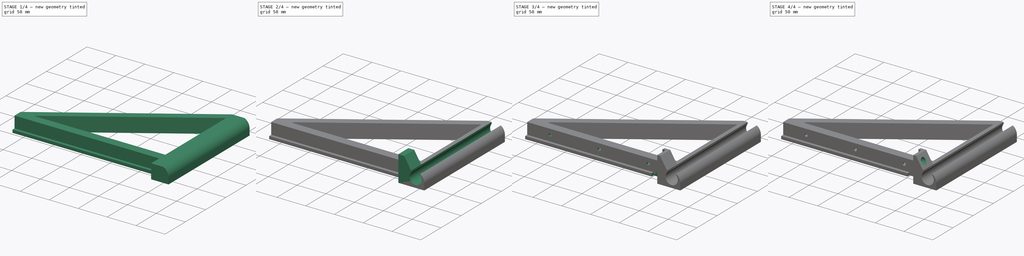
[diagram: build sequence overview — one tinted view per stage of 4, left to right]
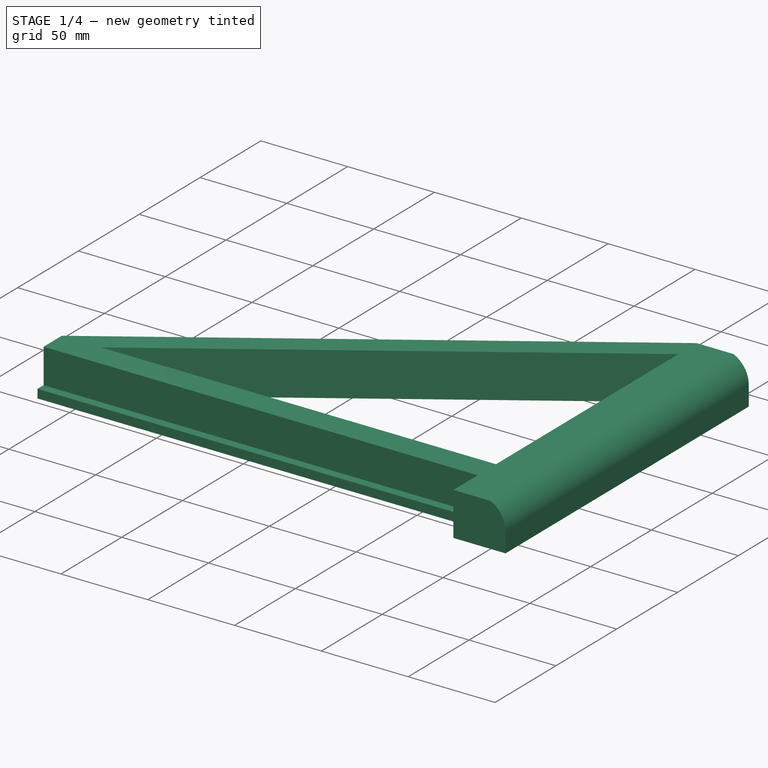
[diagram: stage 1 of 4 — iso view after this stage's code; geometry added in this stage tinted green]
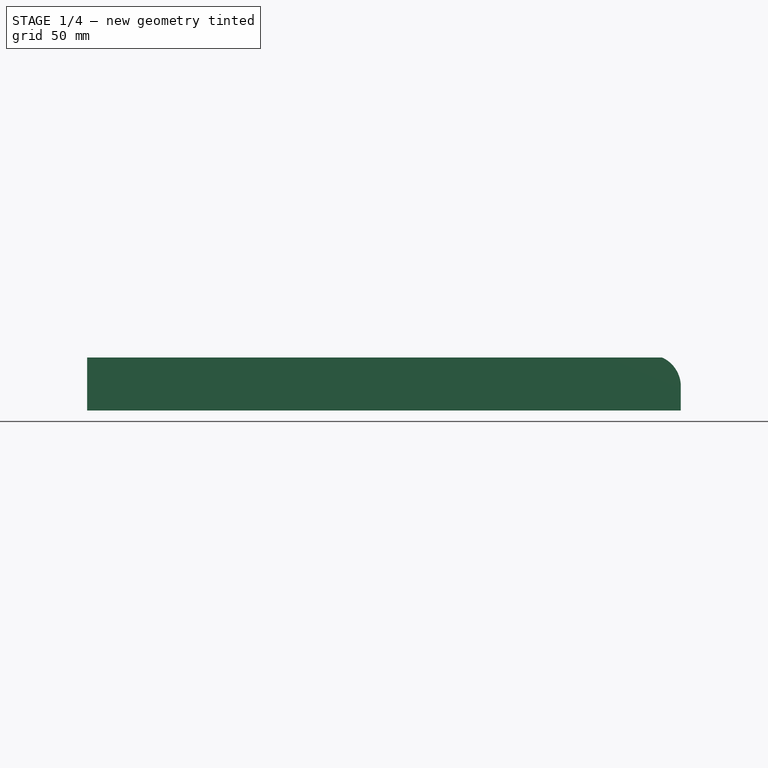
[diagram: stage 1 of 4 — front view after this stage's code; geometry added in this stage tinted green]
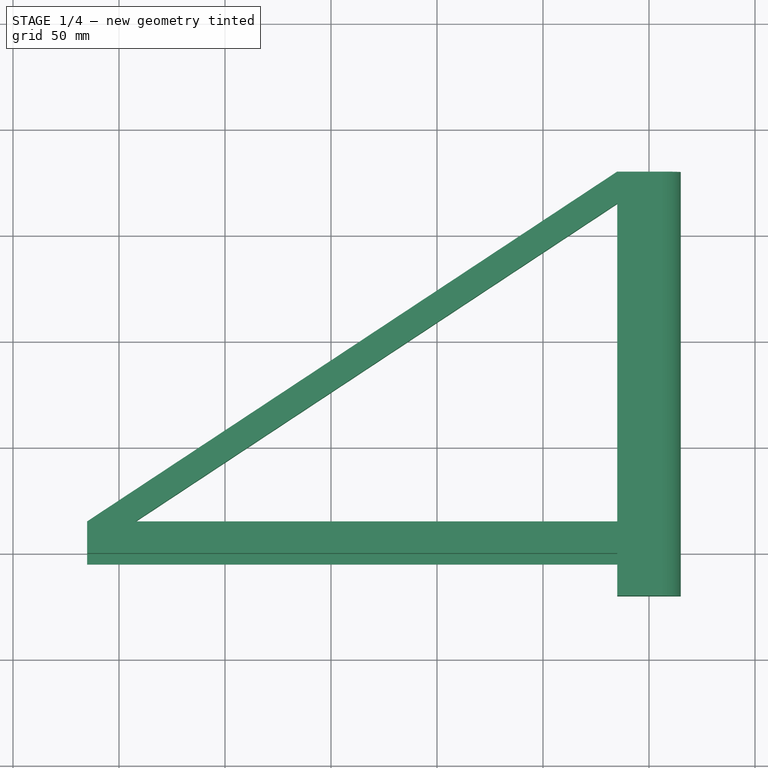
[diagram: stage 1 of 4 — top view after this stage's code; geometry added in this stage tinted green]
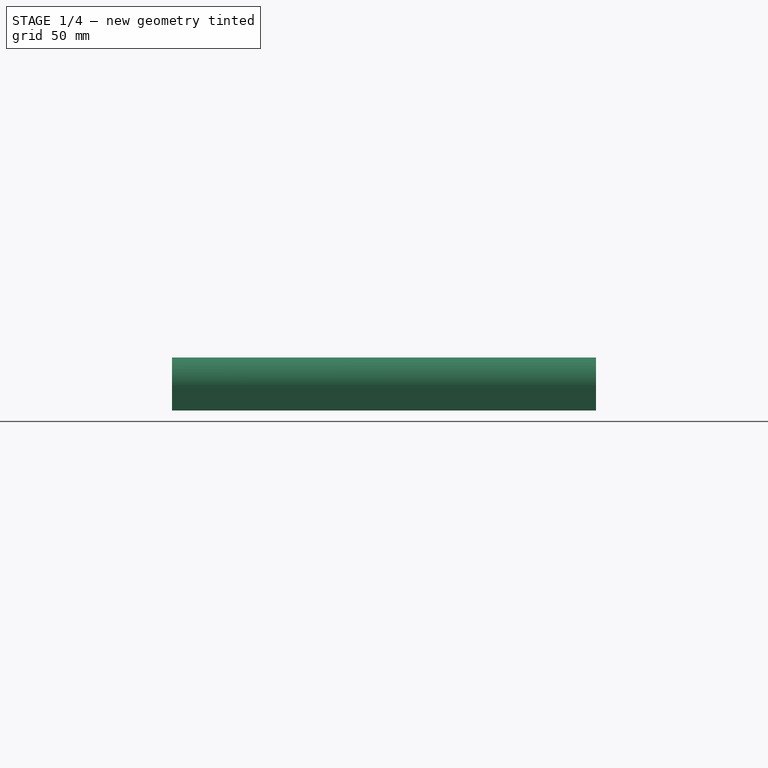
[diagram: stage 1 of 4 — right view after this stage's code; geometry added in this stage tinted green]
FCSTD DOCUMENT  (FreeCAD 0.19R20209 (Git))
Label: Z-Axel-Bearing_020
License: CreativeCommons Attribution
LicenseURL: http://creativecommons.org/licenses/by/4.0/
objects: Sketcher::SketchObject×14, PartDesign::Pocket×7, PartDesign::Pad×3, PartDesign::Plane×2, PartDesign::AdditivePipe×2, PartDesign::Body×1
note: 41 computed .brp shape members not serialized (recipe doc carries the construction recipe); baked Part::Feature solids carry a one-line shape summary decoded from their .brp

FEATURE [Sketcher::SketchObject] Sketch
  MapMode = 5
  Placement = pos=(0,0,0) rot=(1,0,0;1.5708rad)
  Support = -> [XZ_Plane]
  sketch-geometry (7):
    g0: LineSegment StartX=-15 StartY=10 StartZ=0 EndX=3.20156 EndY=10 EndZ=0
    g1: LineSegment StartX=15 StartY=-3.65795 StartZ=0 EndX=15 EndY=-15 EndZ=0
    g2: LineSegment StartX=15 StartY=-15 StartZ=0 EndX=-15 EndY=-15 EndZ=0
    g3: LineSegment StartX=-15 StartY=-15 StartZ=0 EndX=-15 EndY=10 EndZ=0
    g4: Circle [constr] CenterX=0 CenterY=0 CenterZ=0 NormalX=0 NormalY=0 NormalZ=1 AngleXU=0 Radius=10.5
    g5: LineSegment StartX=3.20156 StartY=10 StartZ=0 EndX=6.20156 EndY=10 EndZ=0
    g6: ArcOfCircle CenterX=0 CenterY=-3.65799 CenterZ=0 NormalX=0 NormalY=0 NormalZ=1 AngleXU=0 Radius=15 StartAngle=2.51217e-06 EndAngle=1.14457
  constraints (20):
    c: Coincident(g1,g2)
    c: Coincident(g2,g3)
    c: Coincident(g3,g0)
    c: Horizontal(g0)
    c: Vertical(g1)
    c: Vertical(g3)
    c: DistanceX(g2,g2) = 30
    c: Symmetric(g2,g1,g-2)
    c: DistanceY(g1,g-1) = 15
    c: Diameter(g4) = 21
    c: Coincident(g4,g-1)
    c: Horizontal(g5)
    c: Coincident(g6,g5)
    c: PointOnObject(g6,g-2)
    c: Tangent(g6,g1)
    c: Coincident(g1,g6)
    c: Coincident(g0,g5)
    c: DistanceY(g2,g0) = 25
    c: PointOnObject(g0,g4)
    c: DistanceX(g5,g5) = 3
FEATURE [PartDesign::Pad] Pad
  AllowMultiFace = false
  Length = 20
  Length2 = 180
  Placement = pos=(0,0,0) rot=(1,0,0;1.5708rad)
  Profile = -> Sketch
  Refine = true
  Type = 4
FEATURE [Sketcher::SketchObject] Sketch001
  MapMode = 5
  Support = -> [XY_Plane]
  expr: Constraints[1] = 280 - 15
  sketch-geometry (1):
    g0: LineSegment StartX=-265 StartY=0 StartZ=0 EndX=0 EndY=0 EndZ=0
  constraints (3):
    c: Horizontal(g0)
    c: DistanceX(g0,g0) = 265
    c: Coincident(g0,g-1)
FEATURE [PartDesign::Plane] DatumPlane
  AttachmentOffset = pos=(0,0,-265) rot=(0,0,1;0rad)
  Length = 226.237
  MapMode = 5
  Placement = pos=(-265,5.88e-14,-5.88e-14) rot=(0.57735,0.57735,0.57735;2.0944rad)
  ResizeMode = 0
  Support = -> [YZ_Plane]
  Width = 76.2368
FEATURE [Sketcher::SketchObject] Sketch002
  ExternalGeometry = -> [Sketch001,Pad]
  MapMode = 5
  Placement = pos=(-265,5.88e-14,-5.88e-14) rot=(0.57735,0.57735,0.57735;2.0944rad)
  Support = -> [DatumPlane]
  sketch-geometry (8):
    g0: LineSegment StartX=0 StartY=-10 StartZ=0 EndX=0 EndY=10 EndZ=0
    g1: LineSegment StartX=0 StartY=10 StartZ=0 EndX=15 EndY=10 EndZ=0
    g2: LineSegment StartX=15 StartY=-15 StartZ=0 EndX=-5 EndY=-15 EndZ=0
    g3: LineSegment StartX=-5 StartY=-15 StartZ=0 EndX=-5 EndY=-10 EndZ=0
    g4: LineSegment StartX=-5 StartY=-10 StartZ=0 EndX=0 EndY=-10 EndZ=0
    g5: LineSegment StartX=15 StartY=10 StartZ=0 EndX=5 EndY=3.2e-14 EndZ=0
    g6: LineSegment StartX=5 StartY=3.2e-14 StartZ=0 EndX=5 EndY=-5 EndZ=0
    g7: LineSegment StartX=5 StartY=-5 StartZ=0 EndX=15 EndY=-15 EndZ=0
  constraints (24):
    c: Vertical(g0)
    c: Coincident(g0,g1)
    c: Horizontal(g1)
    c: Horizontal(g2)
    c: Coincident(g2,g3)
    c: Vertical(g3)
    c: Coincident(g3,g4)
    c: Horizontal(g4)
    c: Equal(g3,g4)
    c: DistanceY(g3,g3) = 5
    c: Vertical(g4,g-1)
    c: PointOnObject(g2,g-4)
    c: Coincident(g0,g4)
    c: DistanceY(g0,g0) = 20
    c: Vertical(g2,g1)
    c: Coincident(g5,g6)
    c: Vertical(g6)
    c: Coincident(g6,g7)
    c: Coincident(g7,g2)
    c: Coincident(g5,g1)
    c: Angle(g1,g5) = 0.785398
    c: Angle(g7,g2) = 0.785398
    c: DistanceX(g0,g5) = 5
    c: DistanceY(g6,g6) = 5
FEATURE [PartDesign::AdditivePipe] AdditivePipe
  AllowMultiFace = false
  AuxilleryCurvelinear = true
  AuxillerySpineTangent = false
  BaseFeature = -> Pad
  Binormal = (0,0,0)
  Mode = 2
  Placement = pos=(0,0,0) rot=(1,0,0;1.5708rad)
  Profile = -> Sketch002
  Refine = true
  Spine = -> Sketch001
  SpineTangent = false
  Transformation = 0
  Transition = 0
FEATURE [Sketcher::SketchObject] Sketch003
  ExternalGeometry = -> [AdditivePipe]
  MapMode = 5
  Placement = pos=(-265,5.88e-14,-5.88e-14) rot=(0.57735,0.57735,0.57735;2.0944rad)
  Support = -> [DatumPlane]
  sketch-geometry (6):
    g0: LineSegment StartX=0 StartY=10 StartZ=0 EndX=0 EndY=-15 EndZ=0
    g1: LineSegment StartX=0 StartY=-15 StartZ=0 EndX=15 EndY=-15 EndZ=0
    g2: LineSegment StartX=15 StartY=-15 StartZ=0 EndX=5 EndY=-5 EndZ=0
    g3: LineSegment StartX=5 StartY=-5 StartZ=0 EndX=5 EndY=1.6e-14 EndZ=0
    g4: LineSegment StartX=5 StartY=1.6e-14 StartZ=0 EndX=15 EndY=10 EndZ=0
    g5: LineSegment StartX=15 StartY=10 StartZ=0 EndX=0 EndY=10 EndZ=0
  constraints (14):
    c: Vertical(g0)
    c: Coincident(g0,g1)
    c: Horizontal(g1)
    c: Coincident(g1,g2)
    c: Coincident(g2,g3)
    c: Coincident(g3,g4)
    c: Coincident(g4,g5)
    c: Horizontal(g5)
    c: Coincident(g5,g0)
    c: Vertical(g0,g-1)
    c: Coincident(g4,g-3)
    c: Coincident(g3,g-3)
    c: Coincident(g2,g-4)
    c: Coincident(g1,g-4)
FEATURE [Sketcher::SketchObject] Sketch004
  ExternalGeometry = -> [AdditivePipe]
  MapMode = 5
  Support = -> [XY_Plane]
  sketch-geometry (2):
    g0: LineSegment StartX=-265 StartY=6.11e-14 StartZ=0 EndX=-15 EndY=165 EndZ=0
    g1: LineSegment [constr] StartX=-265 StartY=15 StartZ=0 EndX=-15 EndY=180 EndZ=0
  constraints (5):
    c: Coincident(g0,g-3)
    c: PointOnObject(g0,g-4)
    c: Coincident(g1,g-4)
    c: Coincident(g1,g-5)
    c: Parallel(g1,g0)
FEATURE [PartDesign::AdditivePipe] AdditivePipe001
  AllowMultiFace = false
  AuxilleryCurvelinear = true
  AuxillerySpineTangent = false
  BaseFeature = -> AdditivePipe
  Binormal = (0,0,0)
  Mode = 2
  Placement = pos=(0,0,0) rot=(1,0,0;1.5708rad)
  Profile = -> Sketch003
  Refine = true
  Spine = -> Sketch004
  SpineTangent = false
  Transformation = 0
  Transition = 0
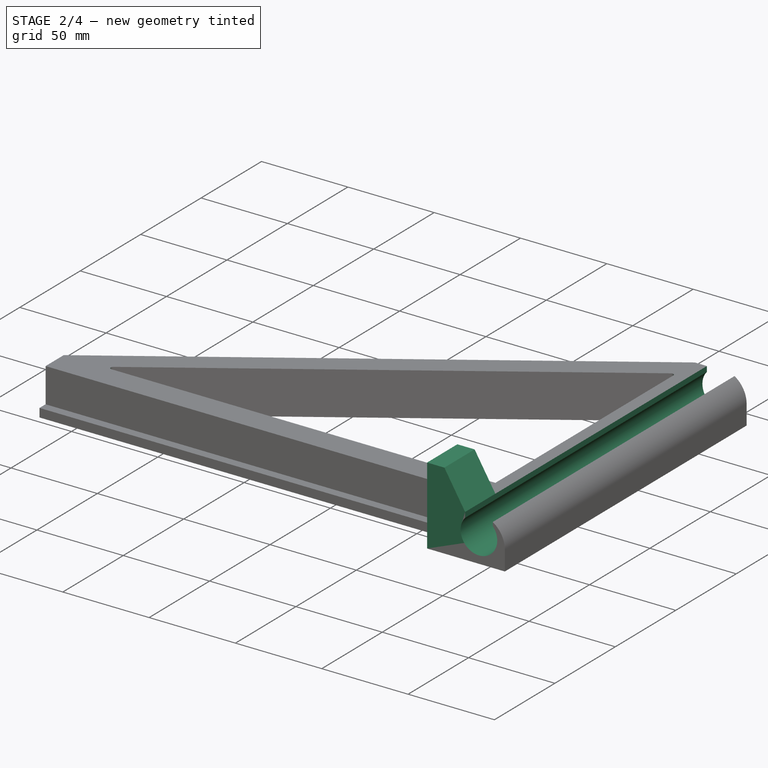
[diagram: stage 2 of 4 — iso view after this stage's code; geometry added in this stage tinted green]
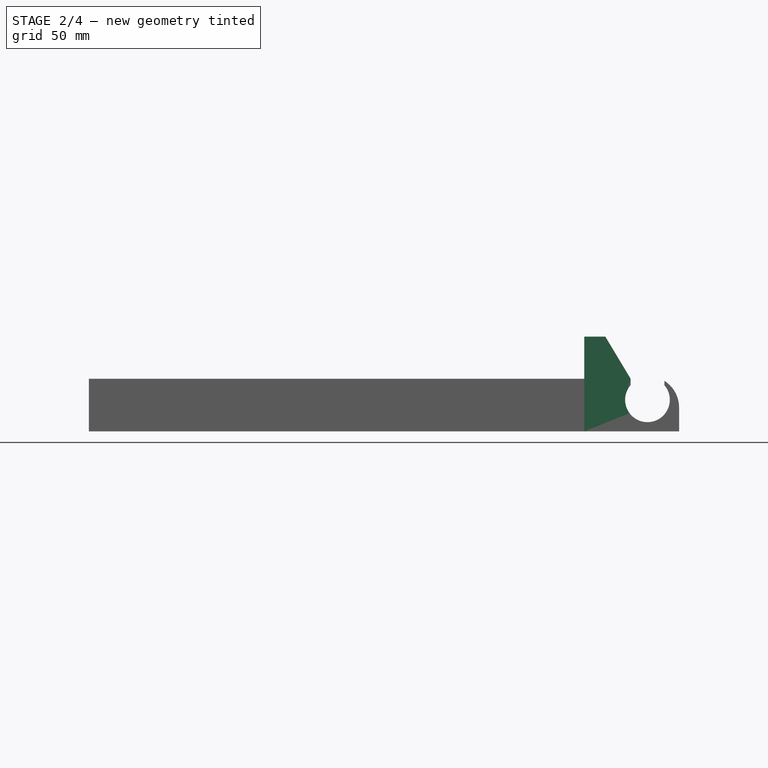
[diagram: stage 2 of 4 — front view after this stage's code; geometry added in this stage tinted green]
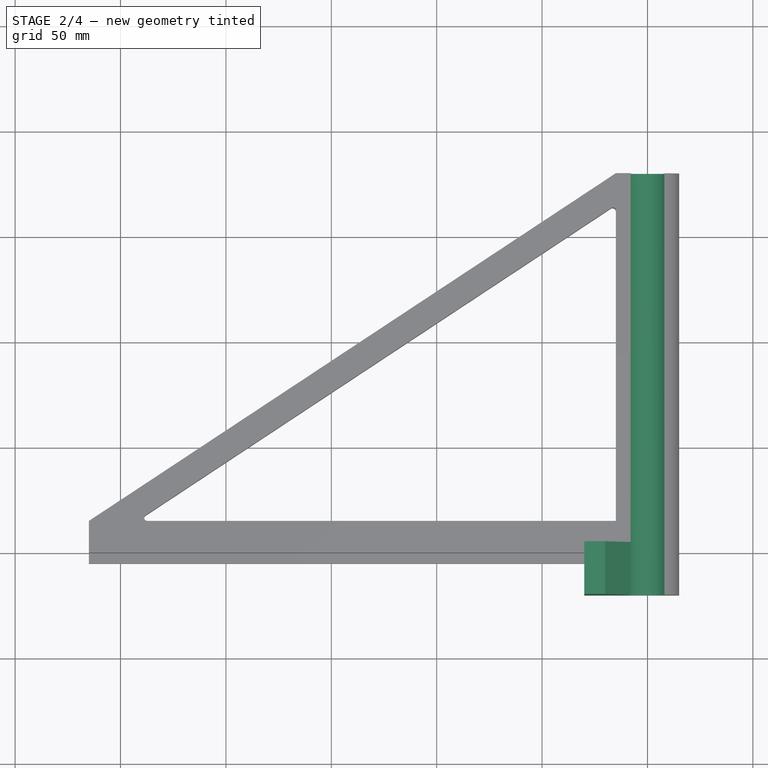
[diagram: stage 2 of 4 — top view after this stage's code; geometry added in this stage tinted green]
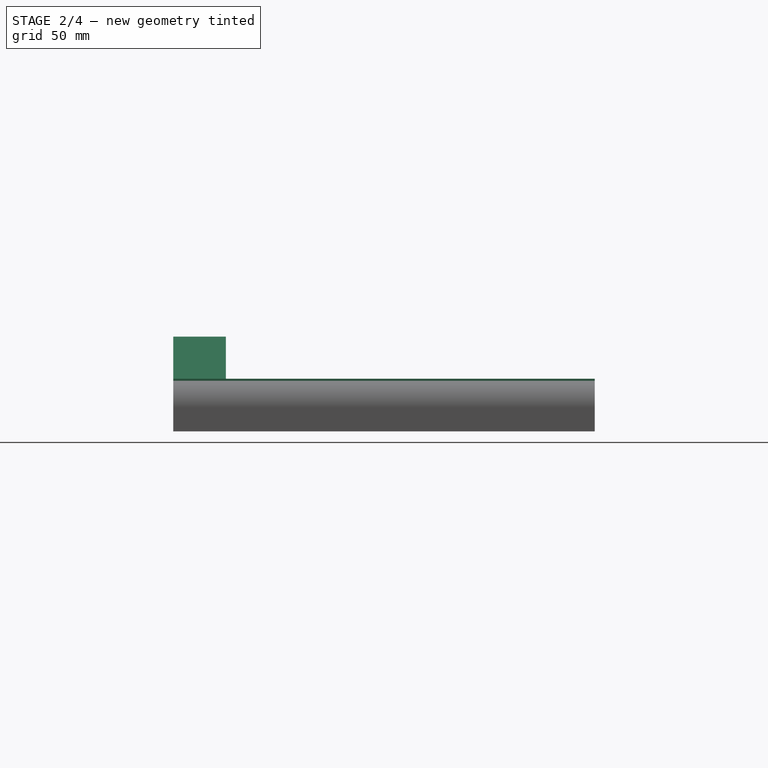
[diagram: stage 2 of 4 — right view after this stage's code; geometry added in this stage tinted green]
FEATURE [Sketcher::SketchObject] Sketch005
  ExternalGeometry = -> [AdditivePipe001]
  MapMode = 5
  Placement = pos=(-1.4e-15,4.1e-15,10) rot=(0,0,1;3.14159rad)
  Support = -> [AdditivePipe001]
  sketch-geometry (11):
    g0: ArcOfCircle CenterX=237.277 CenterY=-16.5 CenterZ=0 NormalX=0 NormalY=0 NormalZ=1 AngleXU=0 Radius=1.5 StartAngle=5.29575 EndAngle=7.85398
    g1: LineSegment StartX=237.277 StartY=-15 StartZ=0 EndX=237.277 EndY=-5 EndZ=0
    g2: LineSegment StartX=237.277 StartY=-5 StartZ=0 EndX=257.424 EndY=-5 EndZ=0
    g3: LineSegment StartX=257.424 StartY=-5 StartZ=0 EndX=257.424 EndY=-10 EndZ=0
    g4: LineSegment StartX=257.424 StartY=-10 StartZ=0 EndX=241.155 EndY=-20.7377 EndZ=0
    g5: LineSegment StartX=241.155 StartY=-20.7377 StartZ=0 EndX=238.103 EndY=-17.7519 EndZ=0
    g6: ArcOfCircle CenterX=16.5 CenterY=-162.213 CenterZ=0 NormalX=0 NormalY=0 NormalZ=1 AngleXU=0 Radius=1.5 StartAngle=3.14159 EndAngle=5.29575
    g7: LineSegment StartX=15 StartY=-162.213 StartZ=0 EndX=12.5275 EndY=-162.213 EndZ=0
    g8: LineSegment StartX=12.5275 StartY=-162.213 StartZ=0 EndX=12.5275 EndY=-171.632 EndZ=0
    g9: LineSegment StartX=17.3263 StartY=-163.465 StartZ=0 EndX=19.8157 EndY=-166.822 EndZ=0
    g10: LineSegment StartX=19.8157 StartY=-166.822 StartZ=0 EndX=12.5275 EndY=-171.632 EndZ=0
  constraints (30):
    c: PointOnObject(g0,g-5)
    c: PointOnObject(g0,g-4)
    c: Tangent(g0,g-4)
    c: Tangent(g-5,g0)
    c: Diameter(g0) = 3
    c: Vertical(g1)
    c: Coincident(g1,g2)
    c: Coincident(g2,g3)
    c: Coincident(g3,g4)
    c: Coincident(g4,g5)
    c: Coincident(g5,g0)
    c: Coincident(g1,g0)
    c: Horizontal(g2)
    c: Vertical(g3)
    c: PointOnObject(g6,g-4)
    c: Tangent(g6,g-3) = 1.5708
    c: Tangent(g-4,g6)
    c: Diameter(g6) = 3
    c: Horizontal(g7)
    c: Coincident(g7,g8)
    c: Vertical(g8)
    c: Coincident(g7,g6)
    c: PointOnObject(g4,g-6)
    c: Coincident(g2,g-7)
    c: Parallel(g4,g-6)
    c: Coincident(g9,g10)
    c: Coincident(g6,g9)
    c: Parallel(g-6,g10)
    c: PointOnObject(g9,g-6)
    c: Coincident(g8,g10)
FEATURE [PartDesign::Pad] Pad001
  AllowMultiFace = false
  BaseFeature = -> AdditivePipe001
  Length = 25
  Length2 = 100
  Placement = pos=(0,0,0) rot=(1,0,0;1.5708rad)
  Profile = -> Sketch005
  Refine = true
  Reversed = true
  Type = 0
FEATURE [Sketcher::SketchObject] Sketch006
  MapMode = 5
  Placement = pos=(0,0,0) rot=(1,0,0;1.5708rad)
  Support = -> [XZ_Plane]
  sketch-geometry (4):
    g0: ArcOfCircle CenterX=0 CenterY=0 CenterZ=0 NormalX=0 NormalY=0 NormalZ=1 AngleXU=0 Radius=10.6 StartAngle=2.42602 EndAngle=6.99876
    g1: LineSegment StartX=-8 StartY=22.9541 StartZ=0 EndX=8 EndY=22.9541 EndZ=0
    g2: LineSegment StartX=8 StartY=22.9541 StartZ=0 EndX=8 EndY=6.95414 EndZ=0
    g3: LineSegment StartX=-8 StartY=6.95414 StartZ=0 EndX=-8 EndY=22.9541 EndZ=0
  constraints (12):
    c: Coincident(g0,g-1)
    c: Diameter(g0) = 21.2
    c: Coincident(g1,g2)
    c: Coincident(g3,g1)
    c: Vertical(g2)
    c: Vertical(g3)
    c: Symmetric(g1,g1,g-2)
    c: DistanceX(g1,g1) = 16
    c: PointOnObject(g2,g0)
    c: Equal(g2,g1)
    c: Coincident(g3,g0)
    c: Horizontal(g0,g0)
FEATURE [PartDesign::Pocket] Pocket
  AllowMultiFace = false
  BaseFeature = -> Pad001
  Length = 5
  Length2 = 100
  Midplane = true
  Placement = pos=(0,0,0) rot=(1,0,0;1.5708rad)
  Profile = -> Sketch006
  Refine = true
  Type = 1
FEATURE [Sketcher::SketchObject] Sketch007
  ExternalGeometry = -> [Pocket]
  MapMode = 5
  Placement = pos=(0,0,0) rot=(1,0,0;1.5708rad)
  Support = -> [XZ_Plane]
  sketch-geometry (7):
    g0: LineSegment StartX=-8 StartY=10 StartZ=0 EndX=-20 EndY=30 EndZ=0
    g1: LineSegment StartX=-20 StartY=30 StartZ=0 EndX=-30 EndY=30 EndZ=0
    g2: LineSegment StartX=-30 StartY=30 StartZ=0 EndX=-30 EndY=-15 EndZ=0
    g3: LineSegment StartX=-30 StartY=-15 StartZ=0 EndX=-10.6 EndY=-15 EndZ=0
    g4: LineSegment StartX=-10.6 StartY=-15 StartZ=0 EndX=-10.6 EndY=6.95414 EndZ=0
    g5: LineSegment StartX=-10.6 StartY=6.95414 StartZ=0 EndX=-8 EndY=6.95414 EndZ=0
    g6: LineSegment StartX=-8 StartY=6.95414 StartZ=0 EndX=-8 EndY=10 EndZ=0
  constraints (19):
    c: Coincident(g0,g1)
    c: Horizontal(g1)
    c: Coincident(g1,g2)
    c: Vertical(g2)
    c: Coincident(g2,g3)
    c: Horizontal(g3)
    c: Coincident(g3,g4)
    c: Vertical(g4)
    c: Coincident(g4,g5)
    c: Horizontal(g5)
    c: Coincident(g5,g6)
    c: Coincident(g5,g-3)
    c: Tangent(g4,g-5)
    c: Coincident(g6,g0)
    c: Coincident(g0,g-3)
    c: PointOnObject(g2,g-4)
    c: DistanceX(g2,g-1) = 30
    c: DistanceY(g2,g1) = 45
    c: DistanceX(g1,g1) = 10
FEATURE [PartDesign::Pad] Pad002
  AllowMultiFace = false
  BaseFeature = -> Pocket
  Length = 20
  Length2 = 5
  Placement = pos=(0,0,0) rot=(1,0,0;1.5708rad)
  Profile = -> Sketch007
  Refine = true
  Type = 4
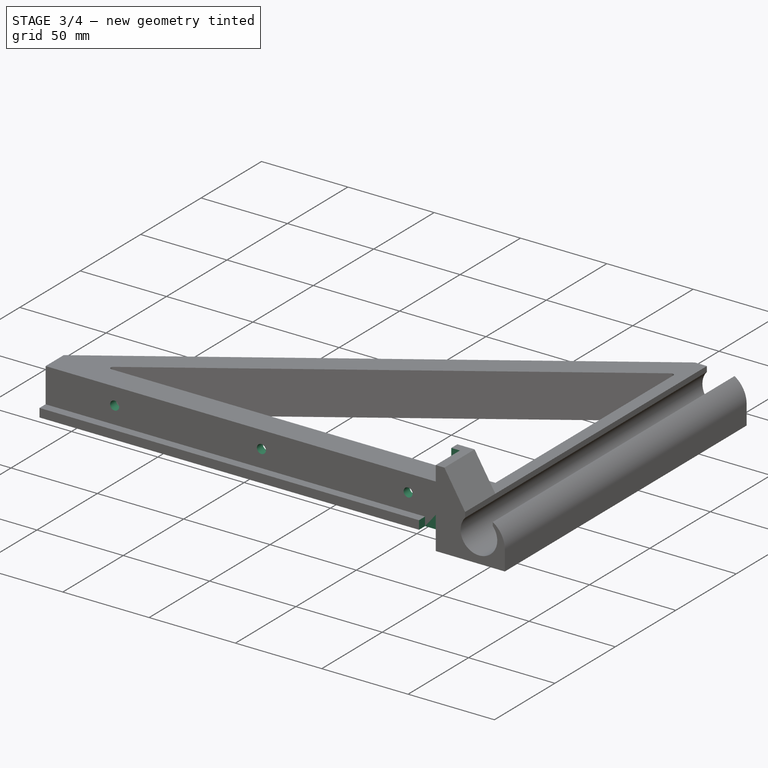
[diagram: stage 3 of 4 — iso view after this stage's code; geometry added in this stage tinted green]
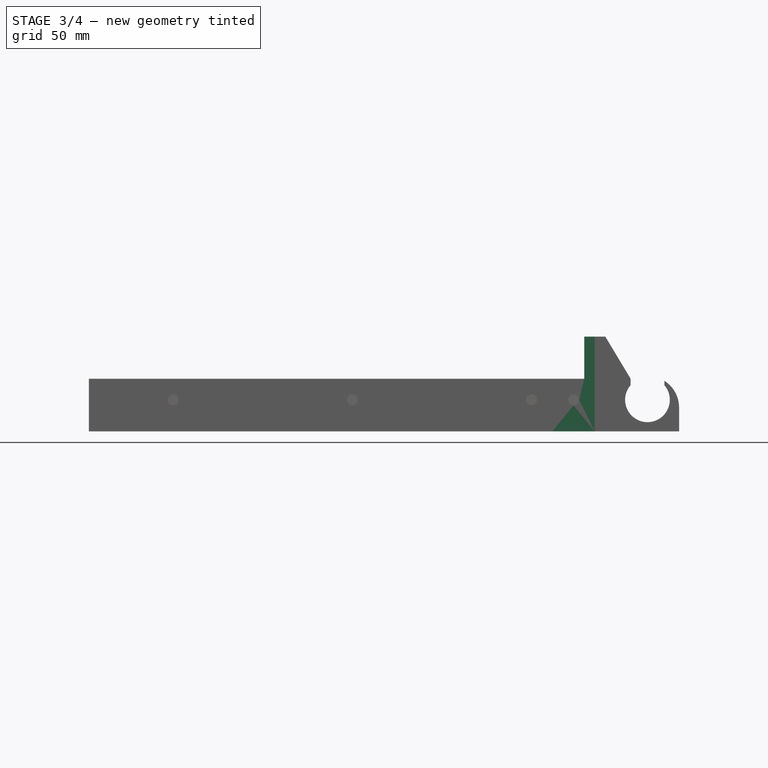
[diagram: stage 3 of 4 — front view after this stage's code; geometry added in this stage tinted green]
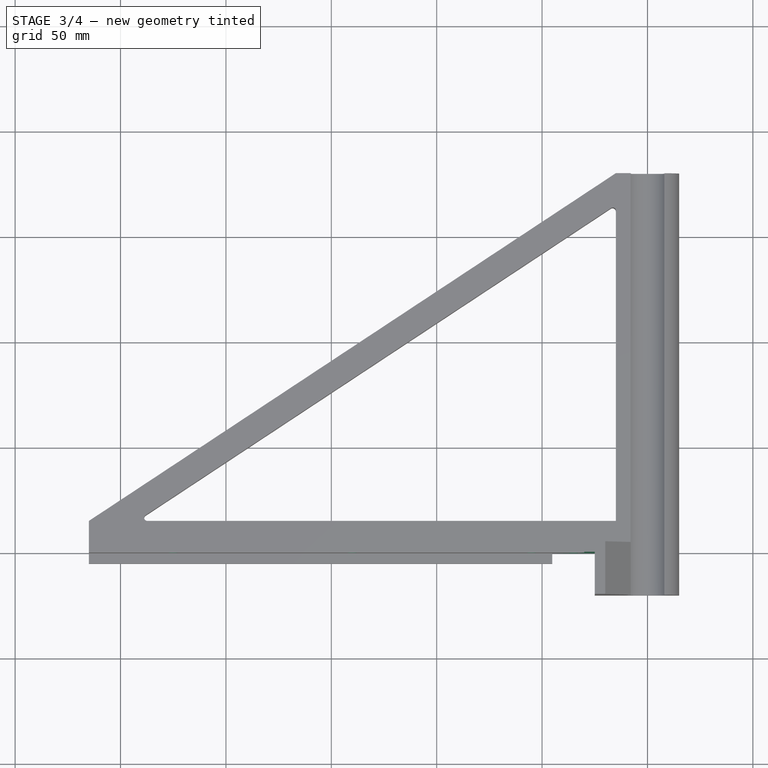
[diagram: stage 3 of 4 — top view after this stage's code; geometry added in this stage tinted green]
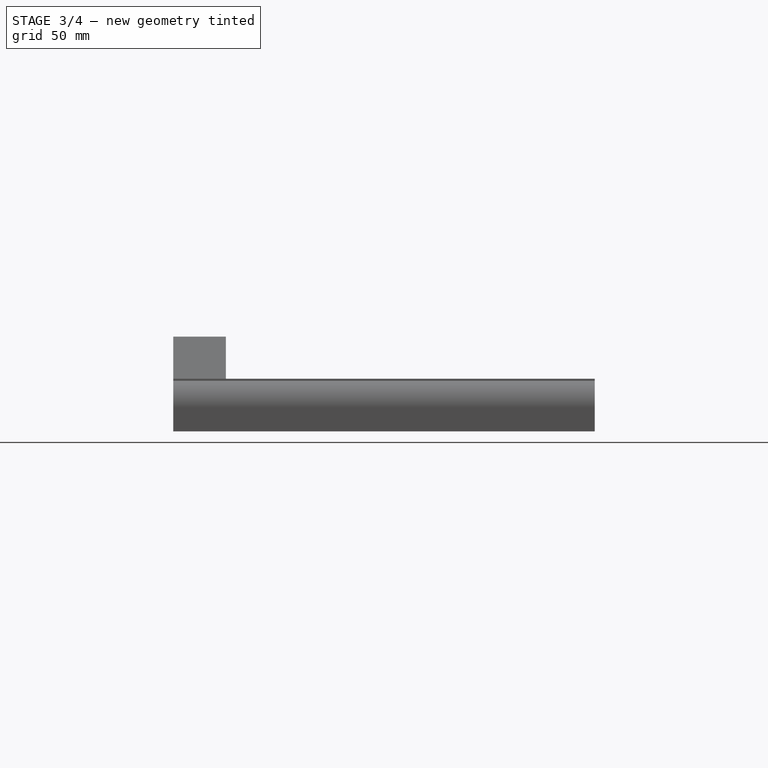
[diagram: stage 3 of 4 — right view after this stage's code; geometry added in this stage tinted green]
FEATURE [Sketcher::SketchObject] Sketch008
  MapMode = 5
  Support = -> [XY_Plane]
  sketch-geometry (4):
    g0: LineSegment StartX=-45.2 StartY=0 StartZ=0 EndX=-25 EndY=0 EndZ=0
    g1: LineSegment StartX=-25 StartY=0 StartZ=0 EndX=-25 EndY=-20.2 EndZ=0
    g2: LineSegment StartX=-25 StartY=-20.2 StartZ=0 EndX=-45.2 EndY=-20.2 EndZ=0
    g3: LineSegment StartX=-45.2 StartY=-20.2 StartZ=0 EndX=-45.2 EndY=0 EndZ=0
  constraints (12):
    c: Coincident(g0,g1)
    c: Coincident(g1,g2)
    c: Coincident(g2,g3)
    c: Coincident(g3,g0)
    c: Horizontal(g0)
    c: Horizontal(g2)
    c: Vertical(g1)
    c: Vertical(g3)
    c: Equal(g1,g0)
    c: DistanceY(g3,g3) = 20.2
    c: PointOnObject(g0,g-1)
    c: DistanceX(g0,g-1) = 25
FEATURE [PartDesign::Pocket] Pocket001
  AllowMultiFace = false
  BaseFeature = -> Pad002
  Length = 5
  Length2 = 100
  Midplane = true
  Placement = pos=(0,0,0) rot=(1,0,0;1.5708rad)
  Profile = -> Sketch008
  Refine = true
  Type = 1
FEATURE [Sketcher::SketchObject] Sketch009
  MapMode = 5
  Placement = pos=(0,0,0) rot=(1,0,0;1.5708rad)
  Support = -> [XZ_Plane]
  sketch-geometry (4):
    g0: Circle CenterX=-35 CenterY=0 CenterZ=0 NormalX=0 NormalY=0 NormalZ=1 AngleXU=0 Radius=2.6
    g1: Circle CenterX=-55 CenterY=0 CenterZ=0 NormalX=0 NormalY=0 NormalZ=1 AngleXU=0 Radius=2.6
    g2: Circle CenterX=-140 CenterY=-7e-16 CenterZ=0 NormalX=0 NormalY=0 NormalZ=1 AngleXU=0 Radius=2.6
    g3: Circle CenterX=-225 CenterY=-7e-16 CenterZ=0 NormalX=0 NormalY=0 NormalZ=1 AngleXU=0 Radius=2.6
  constraints (11):
    c: Horizontal(g2,g3)
    c: Horizontal(g1,g0)
    c: Equal(g3,g2)
    c: Equal(g2,g1)
    c: Equal(g1,g0)
    c: Diameter(g3) = 5.2
    c: Symmetric(g3,g1,g2)
    c: DistanceX(g0,g-1) = 35
    c: DistanceX(g1,g0) = 20
    c: DistanceX(g3,g1) = 170
    c: PointOnObject(g0,g-1)
FEATURE [PartDesign::Pocket] Pocket002
  AllowMultiFace = false
  BaseFeature = -> Pocket001
  Length = 5
  Length2 = 100
  Placement = pos=(0,0,0) rot=(1,0,0;1.5708rad)
  Profile = -> Sketch009
  Refine = true
  Type = 2
FEATURE [PartDesign::Plane] DatumPlane001
  AttachmentOffset = pos=(0,0,-15) rot=(0,0,1;0rad)
  Length = 315.259
  MapMode = 5
  Placement = pos=(0,15,3.3e-15) rot=(1,0,0;1.5708rad)
  ResizeMode = 0
  Support = -> [XZ_Plane]
  Width = 80.2587
FEATURE [Sketcher::SketchObject] Sketch010
  ExternalGeometry = -> [Pocket002]
  MapMode = 5
  Placement = pos=(0,15,3.3e-15) rot=(1,0,0;1.5708rad)
  Support = -> [DatumPlane001]
  sketch-geometry (4):
    g0: Circle CenterX=-225 CenterY=-7e-16 CenterZ=0 NormalX=0 NormalY=0 NormalZ=1 AngleXU=0 Radius=5
    g1: Circle CenterX=-140 CenterY=-4e-16 CenterZ=0 NormalX=0 NormalY=0 NormalZ=1 AngleXU=0 Radius=5
    g2: Circle CenterX=-55 CenterY=0 CenterZ=0 NormalX=0 NormalY=0 NormalZ=1 AngleXU=0 Radius=5
    g3: Circle CenterX=-35 CenterY=0 CenterZ=0 NormalX=0 NormalY=0 NormalZ=1 AngleXU=0 Radius=5
  constraints (9):
    c: Horizontal(g3,g2)
    c: Equal(g3,g2)
    c: Equal(g2,g1)
    c: Equal(g1,g0)
    c: Diameter(g0) = 10
    c: Symmetric(g0,g2,g1)
    c: DistanceX(g2,g3) = 20
    c: Coincident(g3,g-6)
    c: Coincident(g0,g-4)
FEATURE [PartDesign::Pocket] Pocket003
  AllowMultiFace = false
  BaseFeature = -> Pocket002
  Length = 10
  Length2 = 100
  Placement = pos=(0,0,0) rot=(1,0,0;1.5708rad)
  Profile = -> Sketch010
  Refine = true
  Reversed = true
  Type = 0
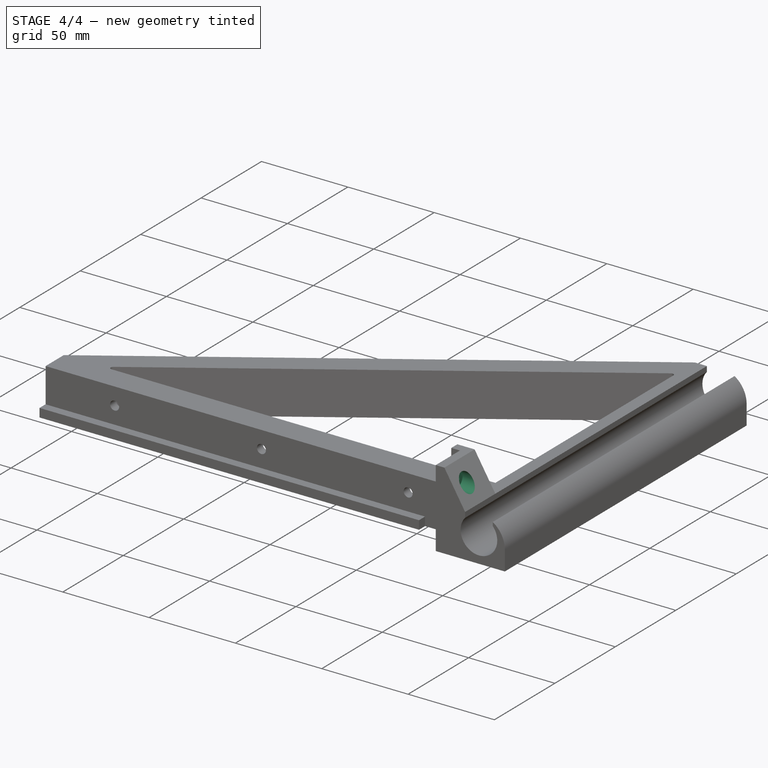
[diagram: stage 4 of 4 — iso view after this stage's code; geometry added in this stage tinted green]
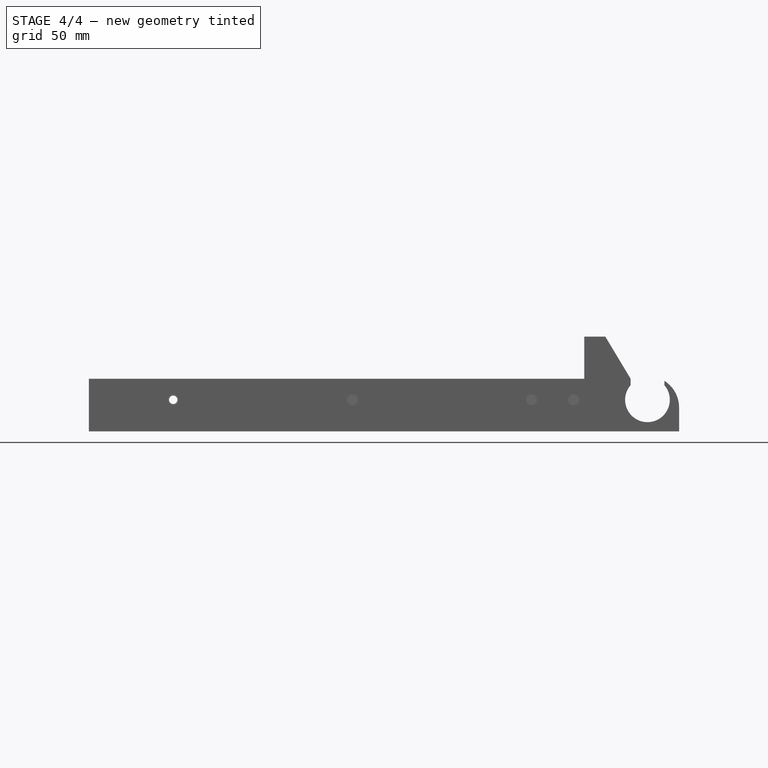
[diagram: stage 4 of 4 — front view after this stage's code; geometry added in this stage tinted green]
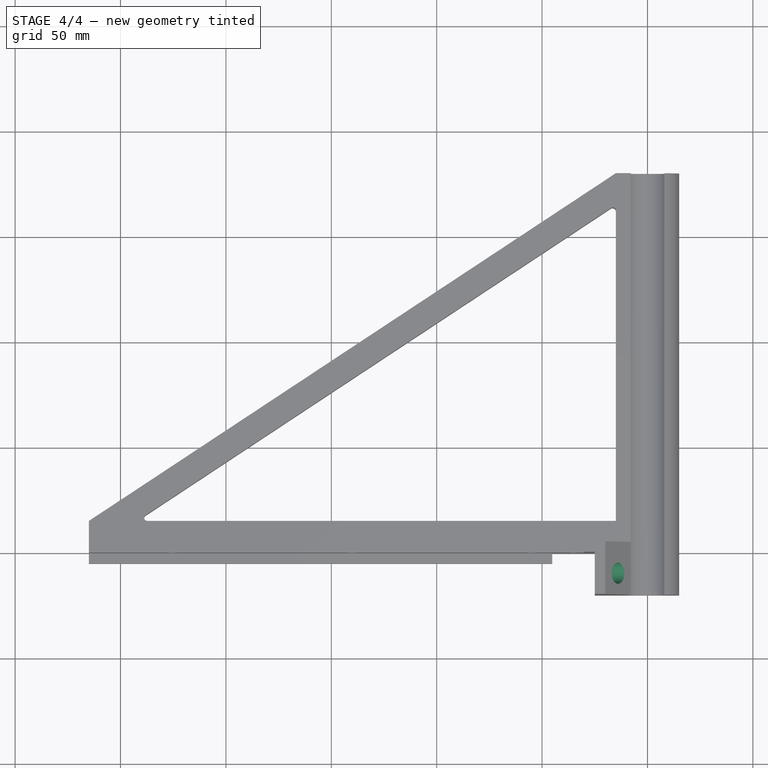
[diagram: stage 4 of 4 — top view after this stage's code; geometry added in this stage tinted green]
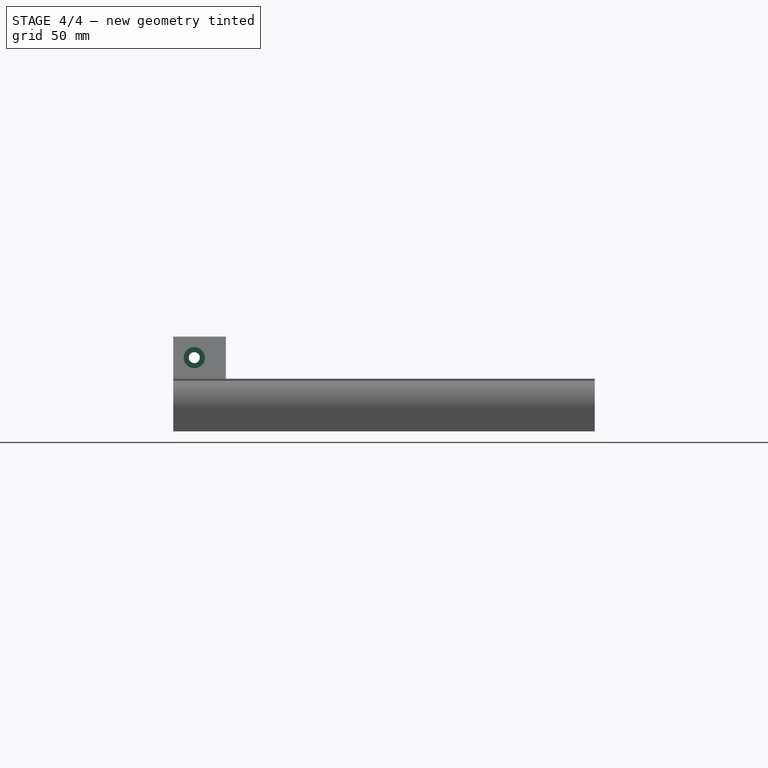
[diagram: stage 4 of 4 — right view after this stage's code; geometry added in this stage tinted green]
FEATURE [Sketcher::SketchObject] Sketch011
  MapMode = 5
  Placement = pos=(0,0,0) rot=(0.57735,0.57735,0.57735;2.0944rad)
  Support = -> [YZ_Plane]
  sketch-geometry (1):
    g0: Circle CenterX=-10 CenterY=20 CenterZ=0 NormalX=0 NormalY=0 NormalZ=1 AngleXU=0 Radius=2.6
  constraints (3):
    c: Diameter(g0) = 5.2
    c: DistanceX(g0,g-1) = 10
    c: DistanceY(g-1,g0) = 20
FEATURE [PartDesign::Pocket] Pocket004
  AllowMultiFace = false
  BaseFeature = -> Pocket003
  Length = 5
  Length2 = 100
  Placement = pos=(0,0,0) rot=(1,0,0;1.5708rad)
  Profile = -> Sketch011
  Refine = true
  Type = 1
FEATURE [Sketcher::SketchObject] Sketch012
  MapMode = 5
  Placement = pos=(0,0,0) rot=(0.57735,0.57735,0.57735;2.0944rad)
  Support = -> [YZ_Plane]
  sketch-geometry (1):
    g0: Circle CenterX=-10 CenterY=20 CenterZ=0 NormalX=0 NormalY=0 NormalZ=1 AngleXU=0 Radius=5
  constraints (3):
    c: Diameter(g0) = 10
    c: DistanceY(g-1,g0) = 20
    c: DistanceX(g0,g-1) = 10
FEATURE [PartDesign::Pocket] Pocket005
  AllowMultiFace = false
  BaseFeature = -> Pocket004
  Length = 20
  Length2 = 100
  Placement = pos=(0,0,0) rot=(1,0,0;1.5708rad)
  Profile = -> Sketch012
  Refine = true
  Type = 0
FEATURE [Sketcher::SketchObject] Sketch013
  ExternalGeometry = -> [Pocket005]
  MapMode = 5
  Placement = pos=(0,0,0) rot=(1,0,0;1.5708rad)
  Support = -> [XZ_Plane]
  sketch-geometry (1):
    g0: Circle CenterX=-225 CenterY=0 CenterZ=0 NormalX=0 NormalY=0 NormalZ=1 AngleXU=0 Radius=2
  constraints (2):
    c: Diameter(g0) = 4
    c: Coincident(g0,g-3)
FEATURE [PartDesign::Pocket] Pocket006
  AllowMultiFace = false
  BaseFeature = -> Pocket005
  Length = 5
  Length2 = 100
  Placement = pos=(0,0,0) rot=(1,0,0;1.5708rad)
  Profile = -> Sketch013
  Refine = true
  Type = 1
FEATURE [PartDesign::Body] Body
  Group = -> [Sketch,Pad,Sketch001,DatumPlane,Sketch002,AdditivePipe,Sketch003,Sketch004,AdditivePipe001,Sketch005,Pad001,Sketch006,Pocket,Sketch007,Pad002,Sketch008,Pocket001,Sketch009,Pocket002,DatumPlane001,Sketch010,Pocket003,Sketch011,Pocket004,Sketch012,Pocket005,Sketch013,Pocket006]
  Origin = -> Origin
  Tip = -> Pocket006
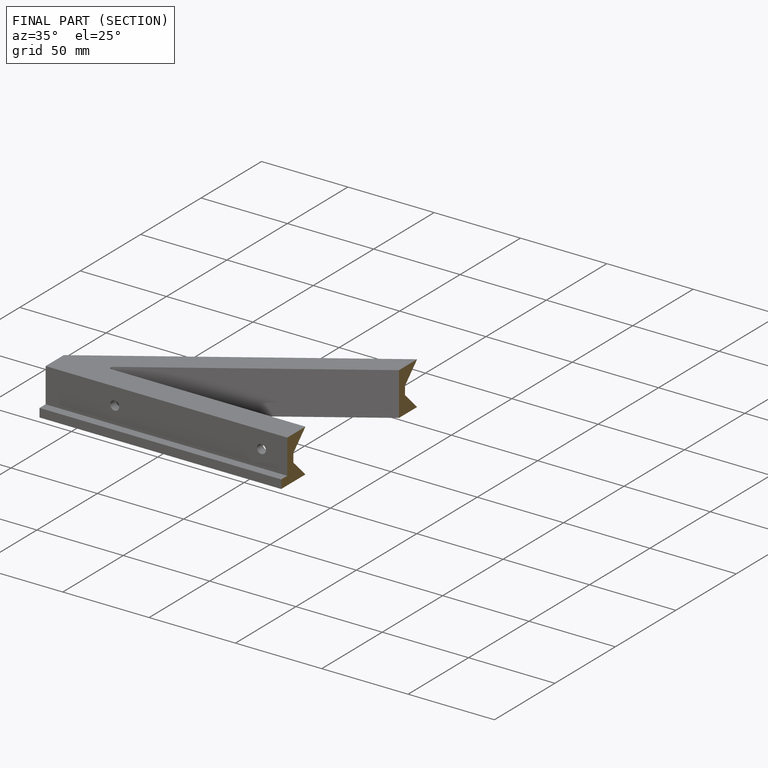
[diagram: finished part — half-section view (interior)]
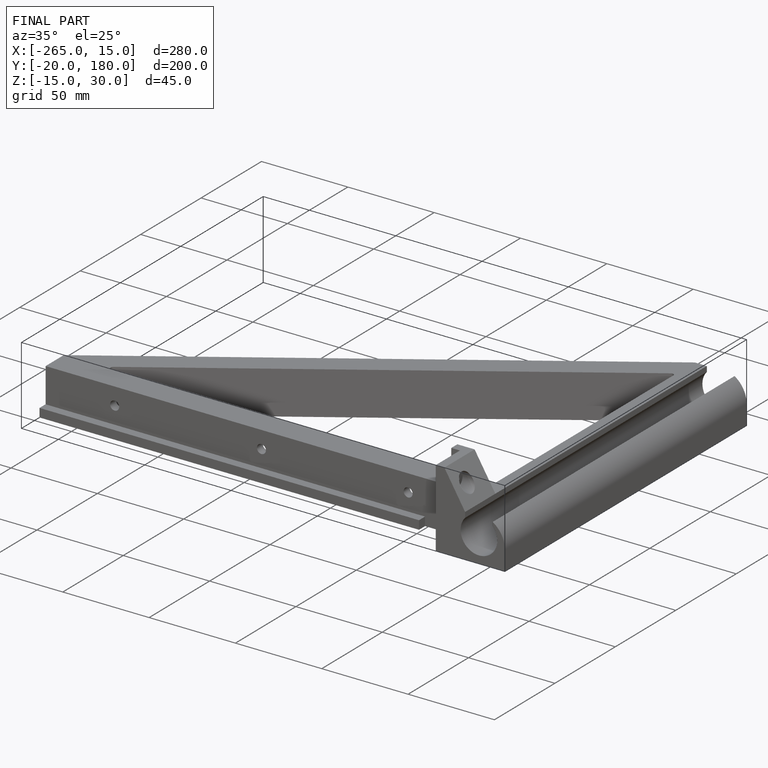
[diagram: finished part — iso view with bounding-box wireframe]
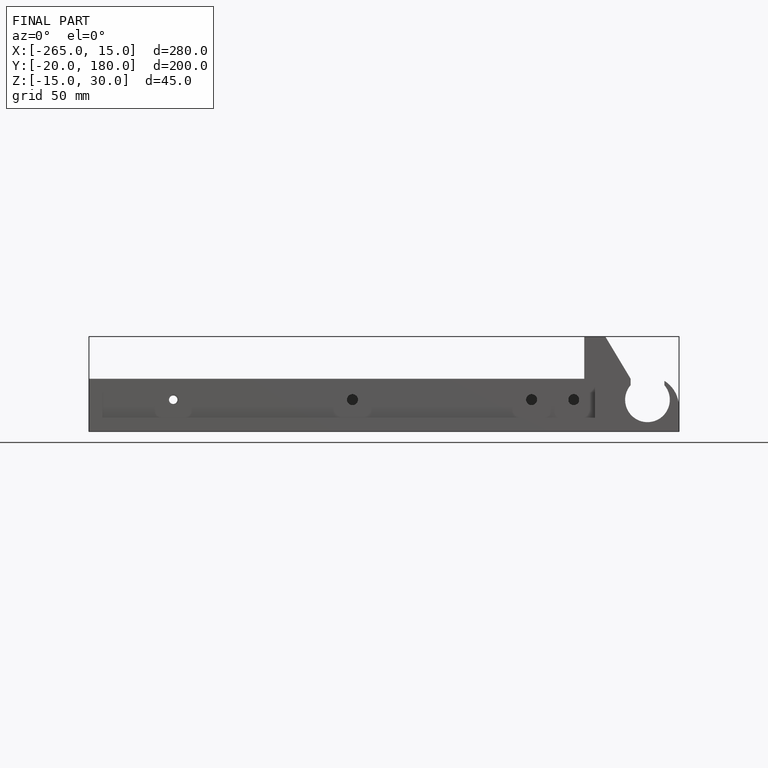
[diagram: finished part — front view with bounding-box wireframe]
